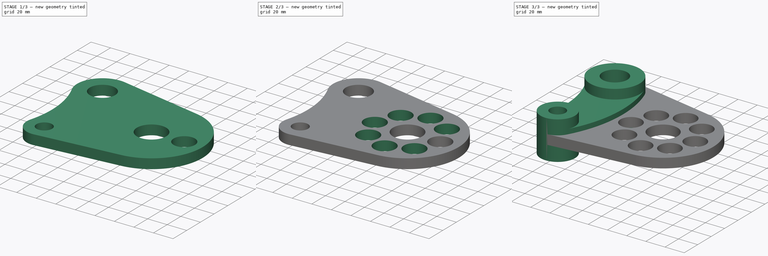
[diagram: build sequence overview — one tinted view per stage of 3, left to right]
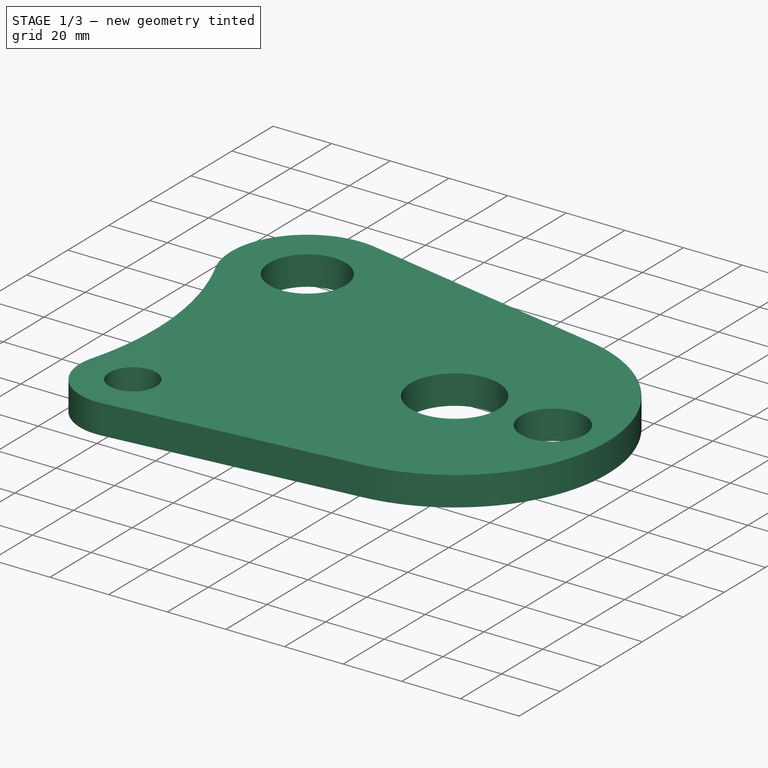
[diagram: stage 1 of 3 — iso view after this stage's code; geometry added in this stage tinted green]
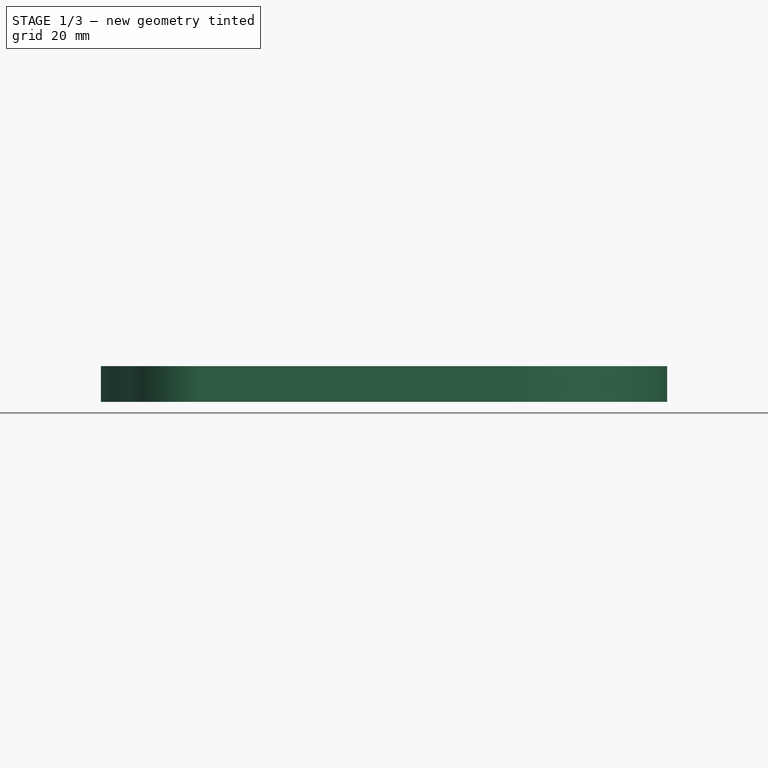
[diagram: stage 1 of 3 — front view after this stage's code; geometry added in this stage tinted green]
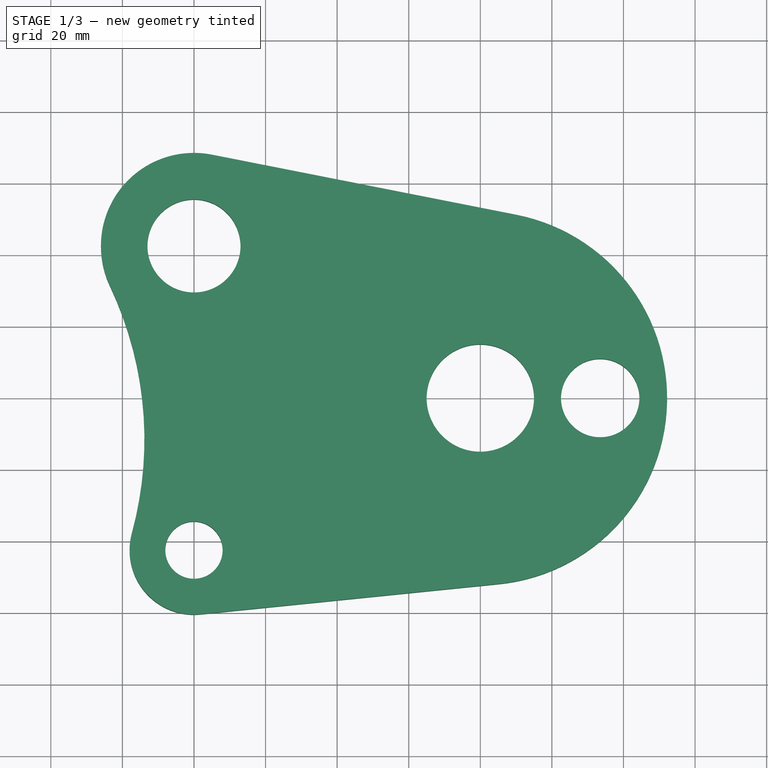
[diagram: stage 1 of 3 — top view after this stage's code; geometry added in this stage tinted green]
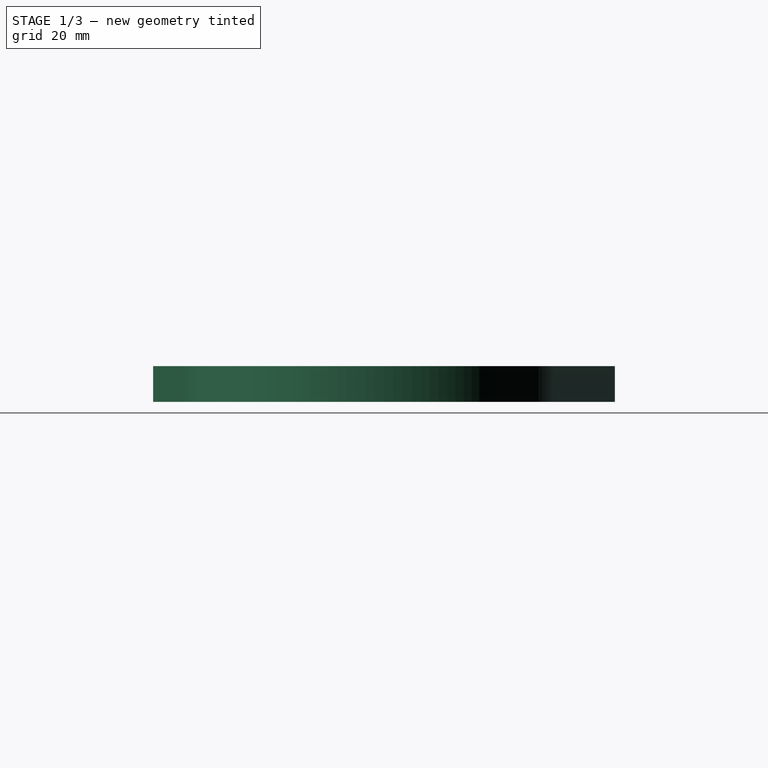
[diagram: stage 1 of 3 — right view after this stage's code; geometry added in this stage tinted green]
FCSTD DOCUMENT  (FreeCAD 0.18R14796 (Git))
Label: Exercise 2D -7
License: All rights reserved
LicenseURL: http://en.wikipedia.org/wiki/All_rights_reserved
objects: Sketcher::SketchObject×4, PartDesign::Pad×3, PartDesign::Pocket×1, PartDesign::PolarPattern×1, PartDesign::Body×1
note: 14 computed .brp shape members not serialized (recipe doc carries the construction recipe); baked Part::Feature solids carry a one-line shape summary decoded from their .brp

FEATURE [Sketcher::SketchObject] Sketch
  MapMode = 5
  Support = -> [XY_Plane]
  sketch-geometry (15):
    g0: Circle CenterX=0 CenterY=0 CenterZ=0 NormalX=0 NormalY=0 NormalZ=1 AngleXU=0 Radius=15
    g1: ArcOfCircle CenterX=0 CenterY=0 CenterZ=0 NormalX=0 NormalY=0 NormalZ=1 AngleXU=0 Radius=52.2 StartAngle=4.81359 EndAngle=7.65906
    g2: Circle CenterX=-80 CenterY=-42.5 CenterZ=0 NormalX=0 NormalY=0 NormalZ=1 AngleXU=0 Radius=8
    g3: Circle CenterX=-80 CenterY=42.5 CenterZ=0 NormalX=0 NormalY=0 NormalZ=1 AngleXU=0 Radius=13
    g4: LineSegment [constr] StartX=-80 StartY=42.5 StartZ=0 EndX=-80 EndY=-42.5 EndZ=0
    g5: GeomPoint X=-80 Y=0 Z=0
    g6: ArcOfCircle CenterX=-80 CenterY=42.5 CenterZ=0 NormalX=0 NormalY=0 NormalZ=1 AngleXU=0 Radius=26 StartAngle=1.37587 EndAngle=3.58435
    g7: ArcOfCircle CenterX=-80 CenterY=-42.5 CenterZ=0 NormalX=0 NormalY=0 NormalZ=1 AngleXU=0 Radius=18 StartAngle=2.87561 EndAngle=4.81359
    g8: LineSegment StartX=-78.1814 StartY=-60.4079 StartZ=0 EndX=5.27385 EndY=-51.9329 EndZ=0
    g9: LineSegment StartX=10.1106 StartY=51.2115 StartZ=0 EndX=-74.9641 EndY=68.0076 EndZ=0
    g10: ArcOfCircle CenterX=-193.85 CenterY=-11.4824 CenterZ=0 NormalX=0 NormalY=0 NormalZ=1 AngleXU=0 Radius=100 StartAngle=6.0172 EndAngle=6.72594
    g11: ArcOfCircle [constr] CenterX=-80 CenterY=42.5 CenterZ=0 NormalX=0 NormalY=0 NormalZ=1 AngleXU=0 Radius=26 StartAngle=3.58435 EndAngle=7.65906
    g12: ArcOfCircle [constr] CenterX=-80 CenterY=-42.5 CenterZ=0 NormalX=0 NormalY=0 NormalZ=1 AngleXU=0 Radius=18 StartAngle=4.81359 EndAngle=9.15879
    g13: ArcOfCircle [constr] CenterX=-173.406 CenterY=9.69412 CenterZ=0 NormalX=0 NormalY=0 NormalZ=1 AngleXU=0 Radius=125 StartAngle=5.77362 EndAngle=6.62094
    g14: Circle [constr] CenterX=33.5 CenterY=0 CenterZ=0 NormalX=0 NormalY=0 NormalZ=1 AngleXU=0 Radius=10.95
  constraints (36):
    c: Coincident(g0,g-1)
    c: Radius(g1) = 52.2
    c: Radius(g2) = 8
    c: Coincident(g1,g0)
    c: DistanceX(g2,g0) = 80
    c: DistanceY(g2,g3) = 85
    c: Coincident(g4,g2)
    c: Vertical(g4)
    c: Coincident(g3,g4)
    c: PointOnObject(g5,g-1)
    c: Symmetric(g2,g3,g5)
    c: Diameter(g3) = 26
    c: Coincident(g6,g3)
    c: Coincident(g7,g2)
    c: Diameter(g6) = 52
    c: Radius(g7) = 18
    c: Tangent(g6,g9) = -1.5708
    c: Tangent(g1,g9) = -1.5708
    c: Tangent(g1,g8) = -1.5708
    c: Tangent(g7,g8) = -1.5708
    c: Tangent(g6,g10) = 1.5708
    c: Tangent(g7,g10) = 1.5708
    c: Coincident(g11,g3)
    c: Coincident(g12,g2)
    c: Tangent(g7,g12) = -1.5708
    c: Coincident(g12,g7)
    c: Radius(g10) = 100
    c: Tangent(g13,g12) = -1.5708
    c: Tangent(g13,g11) = -1.5708
    c: Radius(g13) = 125
    c: Tangent(g11,g6) = -1.5708
    c: Tangent(g11,g6) = -1.5708
    c: PointOnObject(g14,g-1)
    c: Diameter(g14) = 21.9
    c: DistanceX(g0,g14) = 33.5
    c: Diameter(g0) = 30
FEATURE [PartDesign::Pad] Pad
  Length = 10
  Length2 = 100
  Midplane = true
  Profile = -> Sketch
  Refine = true
  Type = 0
FEATURE [Sketcher::SketchObject] Sketch001
  MapMode = 5
  Support = -> [XY_Plane]
  expr: Constraints[1] = Sketch.Constraints[1]
  expr: Constraints[2] = Sketch.Constraints[2]
  expr: Constraints[4] = Sketch.Constraints[4]
  expr: Constraints[5] = Sketch.Constraints[5]
  expr: Constraints[9] = Sketch.Constraints[11]
  expr: Constraints[13] = Sketch.Constraints[15]
  expr: Constraints[27] = Sketch.Constraints[29]
  expr: Constraints[32] = Sketch.Constraints[34]
  expr: Constraints[33] = Sketch.Constraints[35]
  expr: Constraints[31] = Sketch.Constraints[33]
  expr: Constraints[24] = Sketch.Constraints[26]
  expr: Constraints[12] = Sketch.Constraints[14]
  sketch-geometry (15):
    g0: Circle [constr] CenterX=0 CenterY=0 CenterZ=0 NormalX=0 NormalY=0 NormalZ=1 AngleXU=0 Radius=15
    g1: ArcOfCircle [constr] CenterX=0 CenterY=0 CenterZ=0 NormalX=0 NormalY=0 NormalZ=1 AngleXU=0 Radius=52.2 StartAngle=4.81359 EndAngle=7.65906
    g2: Circle [constr] CenterX=-80 CenterY=-42.5 CenterZ=0 NormalX=0 NormalY=0 NormalZ=1 AngleXU=0 Radius=8
    g3: Circle [constr] CenterX=-80 CenterY=42.5 CenterZ=0 NormalX=0 NormalY=0 NormalZ=1 AngleXU=0 Radius=13
    g4: LineSegment [constr] StartX=-80 StartY=42.5 StartZ=0 EndX=-80 EndY=-42.5 EndZ=0
    g5: GeomPoint [constr] X=-80 Y=0 Z=0
    g6: ArcOfCircle [constr] CenterX=-80 CenterY=42.5 CenterZ=0 NormalX=0 NormalY=0 NormalZ=1 AngleXU=0 Radius=26 StartAngle=1.37587 EndAngle=3.58435
    g7: ArcOfCircle [constr] CenterX=-80 CenterY=-42.5 CenterZ=0 NormalX=0 NormalY=0 NormalZ=1 AngleXU=0 Radius=18 StartAngle=2.87561 EndAngle=4.81359
    g8: LineSegment [constr] StartX=-78.1814 StartY=-60.4079 StartZ=0 EndX=5.27385 EndY=-51.9329 EndZ=0
    g9: LineSegment [constr] StartX=10.1106 StartY=51.2115 StartZ=0 EndX=-74.9641 EndY=68.0076 EndZ=0
    g10: ArcOfCircle [constr] CenterX=-193.85 CenterY=-11.4824 CenterZ=0 NormalX=0 NormalY=0 NormalZ=1 AngleXU=0 Radius=100 StartAngle=6.0172 EndAngle=6.72594
    g11: ArcOfCircle [constr] CenterX=-80 CenterY=42.5 CenterZ=0 NormalX=0 NormalY=0 NormalZ=1 AngleXU=0 Radius=26 StartAngle=3.58435 EndAngle=7.65906
    g12: ArcOfCircle [constr] CenterX=-80 CenterY=-42.5 CenterZ=0 NormalX=0 NormalY=0 NormalZ=1 AngleXU=0 Radius=18 StartAngle=4.81359 EndAngle=9.15879
    g13: ArcOfCircle [constr] CenterX=-173.406 CenterY=9.69412 CenterZ=0 NormalX=0 NormalY=0 NormalZ=1 AngleXU=0 Radius=125 StartAngle=5.77362 EndAngle=6.62094
    g14: Circle CenterX=33.5 CenterY=0 CenterZ=0 NormalX=0 NormalY=0 NormalZ=1 AngleXU=0 Radius=10.95
  constraints (34):
    c: Coincident(g0,g-1)
    c: Radius(g1) = 52.2
    c: Radius(g2) = 8
    c: Coincident(g1,g0)
    c: DistanceX(g2,g0) = 80
    c: DistanceY(g2,g3) = 85
    c: Coincident(g4,g2)
    c: Coincident(g3,g4)
    c: Symmetric(g2,g3,g5)
    c: Diameter(g3) = 26
    c: Coincident(g6,g3)
    c: Coincident(g7,g2)
    c: Diameter(g6) = 52
    c: Radius(g7) = 18
    c: Tangent(g6,g9) = -1.5708
    c: Tangent(g1,g9) = -1.5708
    c: Tangent(g1,g8) = -1.5708
    c: Tangent(g7,g8) = -1.5708
    c: Tangent(g6,g10) = 1.5708
    c: Tangent(g7,g10) = 1.5708
    c: Coincident(g11,g3)
    c: Coincident(g12,g2)
    c: Tangent(g7,g12) = -1.5708
    c: Coincident(g12,g7)
    c: Radius(g10) = 100
    c: Tangent(g13,g12) = -1.5708
    c: Tangent(g13,g11) = -1.5708
    c: Radius(g13) = 125
    c: Tangent(g11,g6) = -1.5708
    c: Tangent(g11,g6) = -1.5708
    c: PointOnObject(g14,g-1)
    c: Diameter(g14) = 21.9
    c: DistanceX(g0,g14) = 33.5
    c: Diameter(g0) = 30
FEATURE [PartDesign::Pocket] Pocket
  BaseFeature = -> Pad
  Length = 5
  Length2 = 100
  Midplane = true
  Profile = -> Sketch001
  Refine = true
  Type = 1
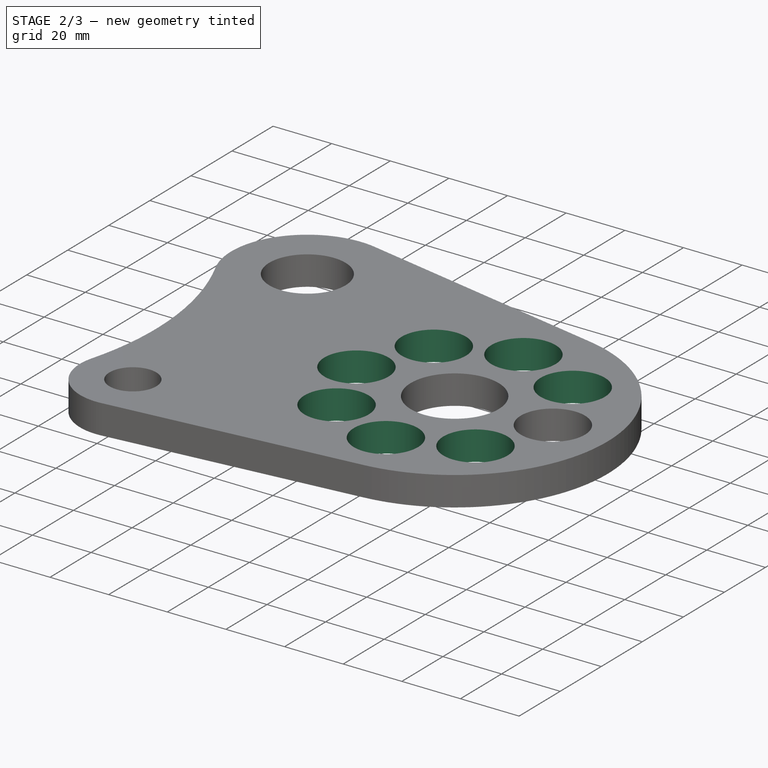
[diagram: stage 2 of 3 — iso view after this stage's code; geometry added in this stage tinted green]
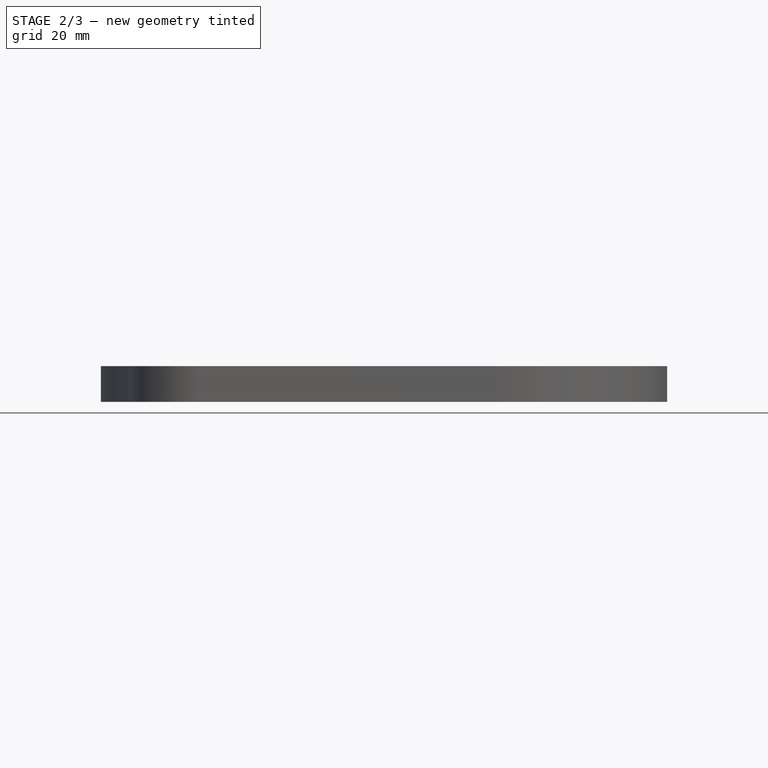
[diagram: stage 2 of 3 — front view after this stage's code; geometry added in this stage tinted green]
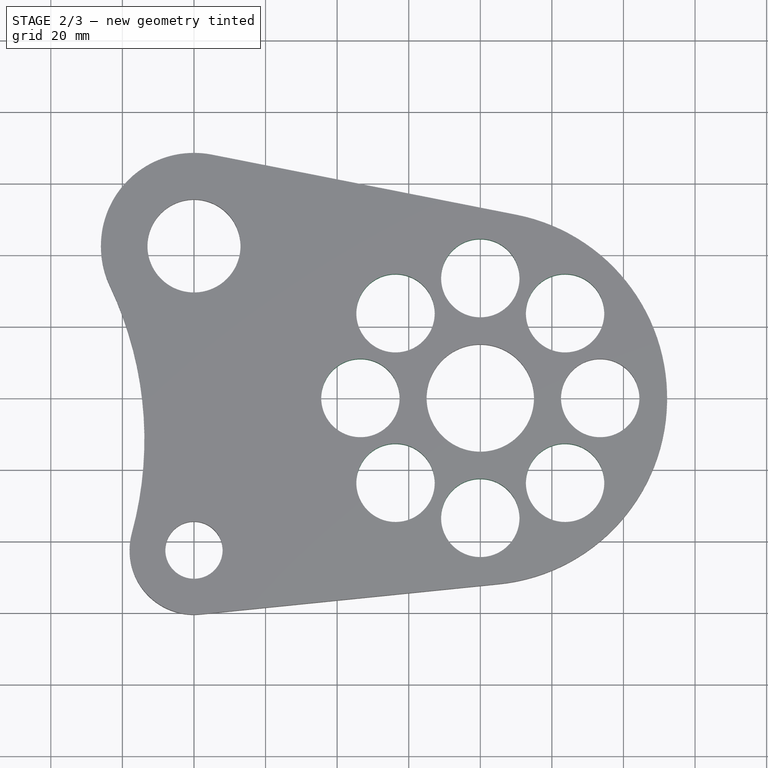
[diagram: stage 2 of 3 — top view after this stage's code; geometry added in this stage tinted green]
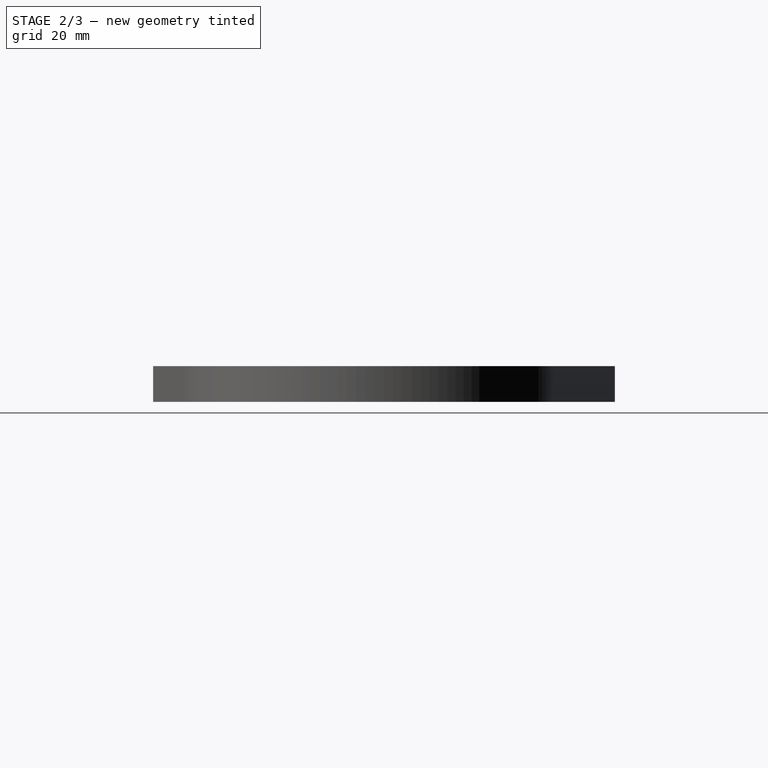
[diagram: stage 2 of 3 — right view after this stage's code; geometry added in this stage tinted green]
FEATURE [PartDesign::PolarPattern] PolarPattern
  Angle = 360
  Axis = -> Sketch001 [N_Axis]
  BaseFeature = -> Pocket
  Occurrences = 8
  Originals = -> [Pocket]
  Refine = true
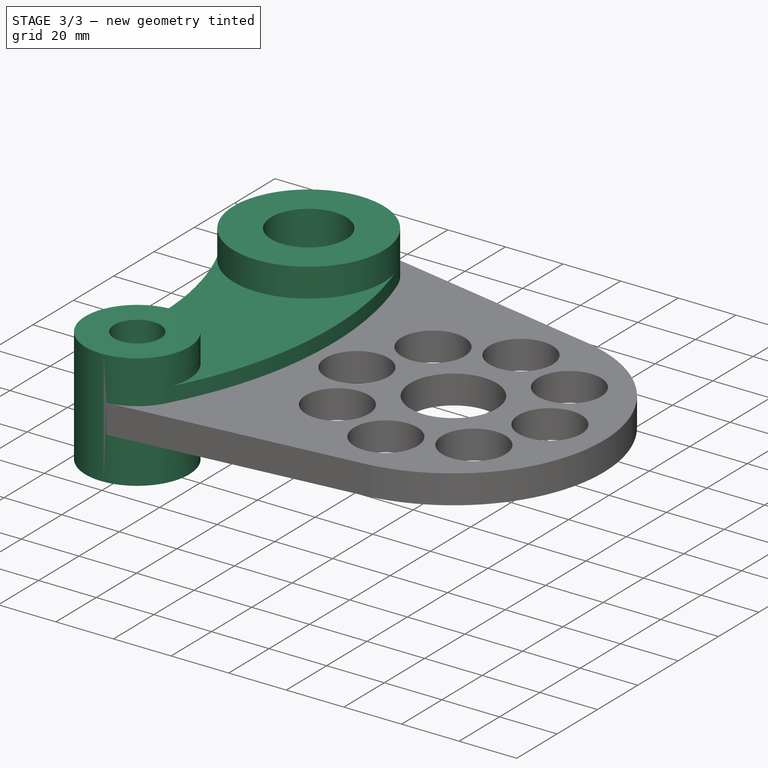
[diagram: stage 3 of 3 — iso view after this stage's code; geometry added in this stage tinted green]
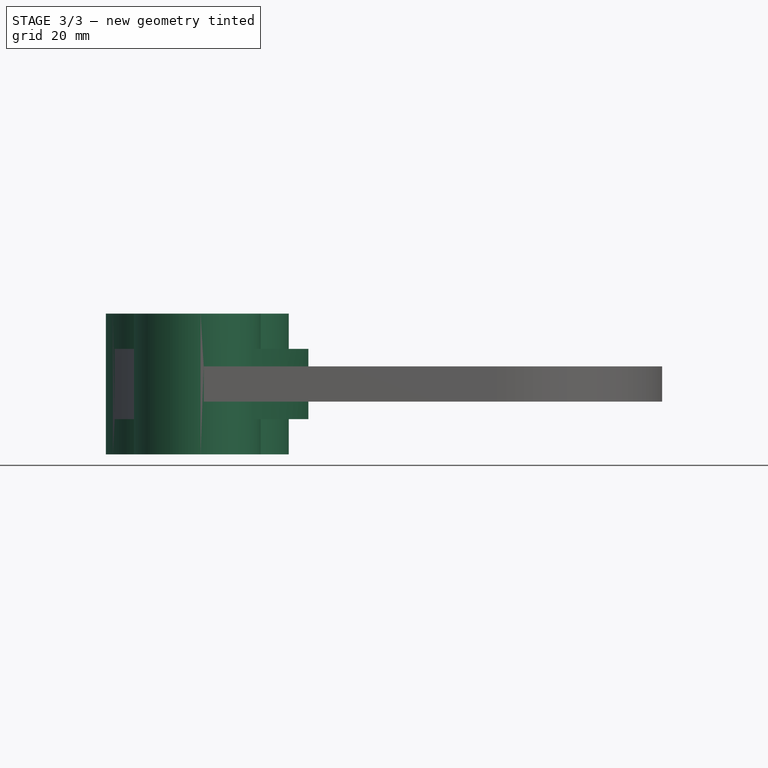
[diagram: stage 3 of 3 — front view after this stage's code; geometry added in this stage tinted green]
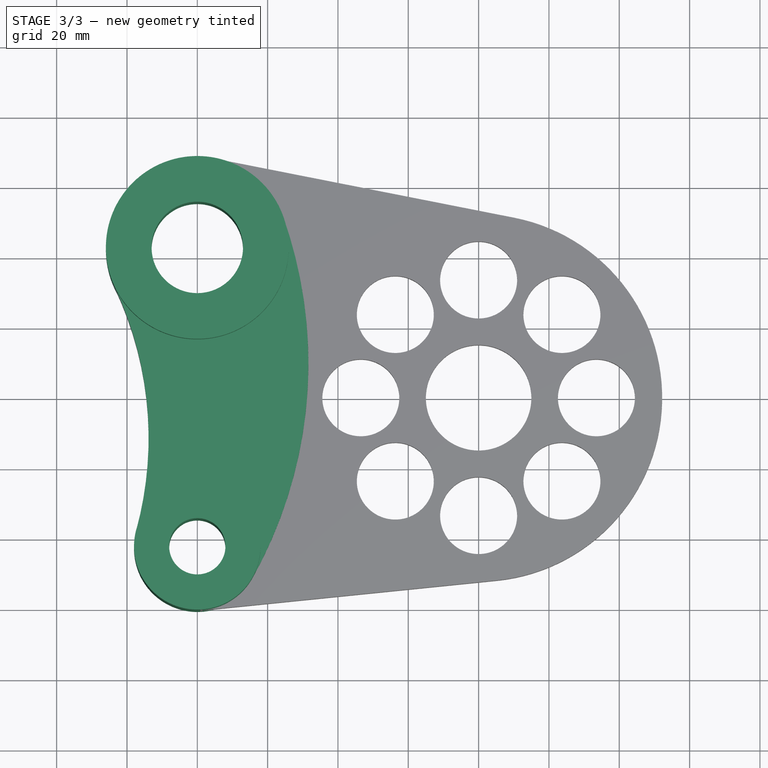
[diagram: stage 3 of 3 — top view after this stage's code; geometry added in this stage tinted green]
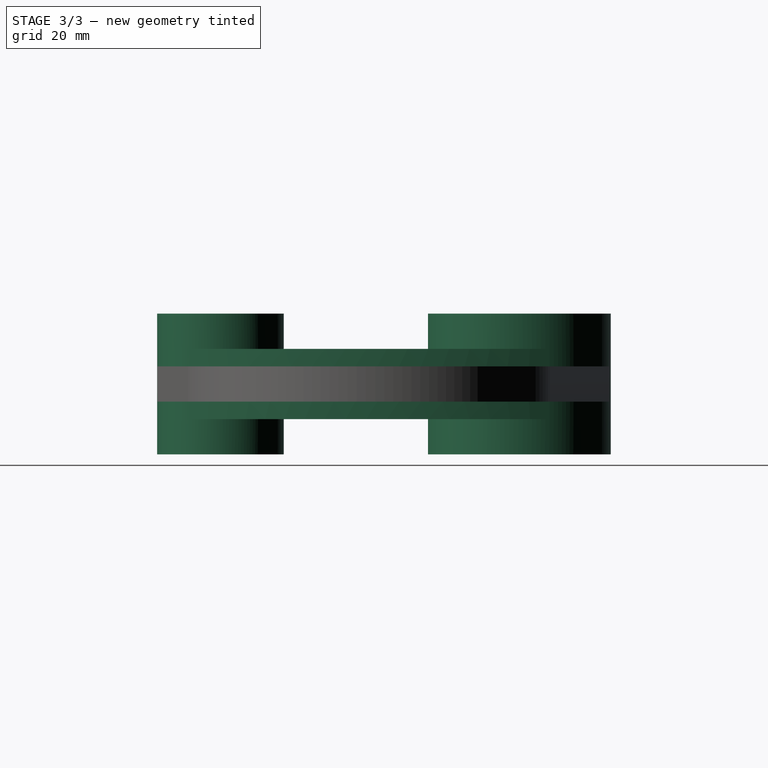
[diagram: stage 3 of 3 — right view after this stage's code; geometry added in this stage tinted green]
FEATURE [Sketcher::SketchObject] Sketch002
  MapMode = 5
  Support = -> [XY_Plane]
  expr: Constraints[1] = Sketch.Constraints[1]
  expr: Constraints[2] = Sketch.Constraints[2]
  expr: Constraints[4] = Sketch.Constraints[4]
  expr: Constraints[5] = Sketch.Constraints[5]
  expr: Constraints[9] = Sketch.Constraints[11]
  expr: Constraints[13] = Sketch.Constraints[15]
  expr: Constraints[27] = Sketch.Constraints[29]
  expr: Constraints[32] = Sketch.Constraints[34]
  expr: Constraints[33] = Sketch.Constraints[35]
  expr: Constraints[31] = Sketch.Constraints[33]
  expr: Constraints[24] = Sketch.Constraints[26]
  expr: Constraints[12] = Sketch.Constraints[14]
  sketch-geometry (17):
    g0: Circle [constr] CenterX=0 CenterY=0 CenterZ=0 NormalX=0 NormalY=0 NormalZ=1 AngleXU=0 Radius=15
    g1: ArcOfCircle [constr] CenterX=0 CenterY=0 CenterZ=0 NormalX=0 NormalY=0 NormalZ=1 AngleXU=0 Radius=52.2 StartAngle=4.81359 EndAngle=7.65906
    g2: Circle CenterX=-80 CenterY=-42.5 CenterZ=0 NormalX=0 NormalY=0 NormalZ=1 AngleXU=0 Radius=8
    g3: Circle CenterX=-80 CenterY=42.5 CenterZ=0 NormalX=0 NormalY=0 NormalZ=1 AngleXU=0 Radius=13
    g4: LineSegment [constr] StartX=-80 StartY=42.5 StartZ=0 EndX=-80 EndY=-42.5 EndZ=0
    g5: GeomPoint [constr] X=-80 Y=0 Z=0
    g6: ArcOfCircle CenterX=-80 CenterY=42.5 CenterZ=0 NormalX=0 NormalY=0 NormalZ=1 AngleXU=0 Radius=26 StartAngle=1.37587 EndAngle=3.58435
    g7: ArcOfCircle CenterX=-80 CenterY=-42.5 CenterZ=0 NormalX=0 NormalY=0 NormalZ=1 AngleXU=0 Radius=18 StartAngle=2.87561 EndAngle=4.81359
    g8: LineSegment [constr] StartX=-78.1814 StartY=-60.4079 StartZ=0 EndX=5.27385 EndY=-51.9329 EndZ=0
    g9: LineSegment [constr] StartX=10.1106 StartY=51.2115 StartZ=0 EndX=-74.9641 EndY=68.0076 EndZ=0
    g10: ArcOfCircle CenterX=-193.85 CenterY=-11.4824 CenterZ=0 NormalX=0 NormalY=0 NormalZ=1 AngleXU=0 Radius=100 StartAngle=6.0172 EndAngle=6.72594
    g11: ArcOfCircle [constr] CenterX=-80 CenterY=42.5 CenterZ=0 NormalX=0 NormalY=0 NormalZ=1 AngleXU=0 Radius=26 StartAngle=3.58435 EndAngle=7.65906
    g12: ArcOfCircle [constr] CenterX=-80 CenterY=-42.5 CenterZ=0 NormalX=0 NormalY=0 NormalZ=1 AngleXU=0 Radius=18 StartAngle=4.81359 EndAngle=9.15879
    g13: ArcOfCircle CenterX=-173.406 CenterY=9.69412 CenterZ=0 NormalX=0 NormalY=0 NormalZ=1 AngleXU=0 Radius=125 StartAngle=5.77362 EndAngle=6.62094
    g14: Circle [constr] CenterX=33.5 CenterY=0 CenterZ=0 NormalX=0 NormalY=0 NormalZ=1 AngleXU=0 Radius=10.95
    g15: ArcOfCircle CenterX=-80 CenterY=42.5 CenterZ=0 NormalX=0 NormalY=0 NormalZ=1 AngleXU=0 Radius=26 StartAngle=0.337758 EndAngle=1.37587
    g16: ArcOfCircle CenterX=-80 CenterY=-42.5 CenterZ=0 NormalX=0 NormalY=0 NormalZ=1 AngleXU=0 Radius=18 StartAngle=4.81359 EndAngle=5.77362
  constraints (40):
    c: Coincident(g0,g-1)
    c: Radius(g1) = 52.2
    c: Radius(g2) = 8
    c: Coincident(g1,g0)
    c: DistanceX(g2,g0) = 80
    c: DistanceY(g2,g3) = 85
    c: Coincident(g4,g2)
    c: Coincident(g3,g4)
    c: Symmetric(g2,g3,g5)
    c: Diameter(g3) = 26
    c: Coincident(g6,g3)
    c: Coincident(g7,g2)
    c: Diameter(g6) = 52
    c: Radius(g7) = 18
    c: Tangent(g6,g9) = -1.5708
    c: Tangent(g1,g9) = -1.5708
    c: Tangent(g1,g8) = -1.5708
    c: Tangent(g7,g8) = -1.5708
    c: Tangent(g6,g10) = 1.5708
    c: Tangent(g7,g10) = 1.5708
    c: Coincident(g11,g3)
    c: Coincident(g12,g2)
    c: Tangent(g7,g12) = -1.5708
    c: Coincident(g12,g7)
    c: Radius(g10) = 100
    c: Tangent(g13,g12) = -1.5708
    c: Tangent(g13,g11) = -1.5708
    c: Radius(g13) = 125
    c: Tangent(g11,g6) = -1.5708
    c: Tangent(g11,g6) = -1.5708
    c: PointOnObject(g14,g-1)
    c: Diameter(g14) = 21.9
    c: DistanceX(g0,g14) = 33.5
    c: Diameter(g0) = 30
    c: Coincident(g15,g6)
    c: Coincident(g15,g13)
    c: Coincident(g15,g6)
    c: Coincident(g16,g7)
    c: Coincident(g16,g7)
    c: Coincident(g16,g13)
FEATURE [PartDesign::Pad] Pad001
  BaseFeature = -> PolarPattern
  Length = 20
  Length2 = 100
  Midplane = true
  Profile = -> Sketch002
  Refine = true
  Type = 0
FEATURE [Sketcher::SketchObject] Sketch003
  MapMode = 5
  Support = -> [XY_Plane]
  expr: Constraints[1] = Sketch.Constraints[1]
  expr: Constraints[2] = Sketch.Constraints[2]
  expr: Constraints[4] = Sketch.Constraints[4]
  expr: Constraints[5] = Sketch.Constraints[5]
  expr: Constraints[9] = Sketch.Constraints[11]
  expr: Constraints[13] = Sketch.Constraints[15]
  expr: Constraints[27] = Sketch.Constraints[29]
  expr: Constraints[32] = Sketch.Constraints[34]
  expr: Constraints[33] = Sketch.Constraints[35]
  expr: Constraints[31] = Sketch.Constraints[33]
  expr: Constraints[24] = Sketch.Constraints[26]
  expr: Constraints[12] = Sketch.Constraints[14]
  sketch-geometry (15):
    g0: Circle [constr] CenterX=0 CenterY=0 CenterZ=0 NormalX=0 NormalY=0 NormalZ=1 AngleXU=0 Radius=15
    g1: ArcOfCircle [constr] CenterX=0 CenterY=0 CenterZ=0 NormalX=0 NormalY=0 NormalZ=1 AngleXU=0 Radius=52.2 StartAngle=4.81359 EndAngle=7.65906
    g2: Circle CenterX=-80 CenterY=-42.5 CenterZ=0 NormalX=0 NormalY=0 NormalZ=1 AngleXU=0 Radius=8
    g3: Circle CenterX=-80 CenterY=42.5 CenterZ=0 NormalX=0 NormalY=0 NormalZ=1 AngleXU=0 Radius=13
    g4: LineSegment [constr] StartX=-80 StartY=42.5 StartZ=0 EndX=-80 EndY=-42.5 EndZ=0
    g5: GeomPoint [constr] X=-80 Y=0 Z=0
    g6: ArcOfCircle CenterX=-80 CenterY=42.5 CenterZ=0 NormalX=0 NormalY=0 NormalZ=1 AngleXU=0 Radius=26 StartAngle=1.37587 EndAngle=3.58435
    g7: ArcOfCircle CenterX=-80 CenterY=-42.5 CenterZ=0 NormalX=0 NormalY=0 NormalZ=1 AngleXU=0 Radius=18 StartAngle=2.87561 EndAngle=4.81359
    g8: LineSegment [constr] StartX=-78.1814 StartY=-60.4079 StartZ=0 EndX=5.27385 EndY=-51.9329 EndZ=0
    g9: LineSegment [constr] StartX=10.1106 StartY=51.2115 StartZ=0 EndX=-74.9641 EndY=68.0076 EndZ=0
    g10: ArcOfCircle [constr] CenterX=-193.85 CenterY=-11.4824 CenterZ=0 NormalX=0 NormalY=0 NormalZ=1 AngleXU=0 Radius=100 StartAngle=6.0172 EndAngle=6.72594
    g11: ArcOfCircle CenterX=-80 CenterY=42.5 CenterZ=0 NormalX=0 NormalY=0 NormalZ=1 AngleXU=0 Radius=26 StartAngle=3.58435 EndAngle=7.65906
    g12: ArcOfCircle CenterX=-80 CenterY=-42.5 CenterZ=0 NormalX=0 NormalY=0 NormalZ=1 AngleXU=0 Radius=18 StartAngle=4.81359 EndAngle=9.15879
    g13: ArcOfCircle [constr] CenterX=-173.406 CenterY=9.69412 CenterZ=0 NormalX=0 NormalY=0 NormalZ=1 AngleXU=0 Radius=125 StartAngle=5.77362 EndAngle=6.62094
    g14: Circle [constr] CenterX=33.5 CenterY=0 CenterZ=0 NormalX=0 NormalY=0 NormalZ=1 AngleXU=0 Radius=10.95
  constraints (34):
    c: Coincident(g0,g-1)
    c: Radius(g1) = 52.2
    c: Radius(g2) = 8
    c: Coincident(g1,g0)
    c: DistanceX(g2,g0) = 80
    c: DistanceY(g2,g3) = 85
    c: Coincident(g4,g2)
    c: Coincident(g3,g4)
    c: Symmetric(g2,g3,g5)
    c: Diameter(g3) = 26
    c: Coincident(g6,g3)
    c: Coincident(g7,g2)
    c: Diameter(g6) = 52
    c: Radius(g7) = 18
    c: Tangent(g6,g9) = -1.5708
    c: Tangent(g1,g9) = -1.5708
    c: Tangent(g1,g8) = -1.5708
    c: Tangent(g7,g8) = -1.5708
    c: Tangent(g6,g10) = 1.5708
    c: Tangent(g7,g10) = 1.5708
    c: Coincident(g11,g3)
    c: Coincident(g12,g2)
    c: Tangent(g7,g12) = -1.5708
    c: Coincident(g12,g7)
    c: Radius(g10) = 100
    c: Tangent(g13,g12) = -1.5708
    c: Tangent(g13,g11) = -1.5708
    c: Radius(g13) = 125
    c: Tangent(g11,g6) = -1.5708
    c: Tangent(g11,g6) = -1.5708
    c: PointOnObject(g14,g-1)
    c: Diameter(g14) = 21.9
    c: DistanceX(g0,g14) = 33.5
    c: Diameter(g0) = 30
FEATURE [PartDesign::Pad] Pad002
  BaseFeature = -> Pad001
  Length = 40
  Length2 = 100
  Midplane = true
  Profile = -> Sketch003
  Refine = true
  Type = 0
FEATURE [PartDesign::Body] Body
  Group = -> [Sketch,Pad,Sketch001,Pocket,PolarPattern,Sketch002,Pad001,Sketch003,Pad002]
  Origin = -> Origin
  Tip = -> Pad002
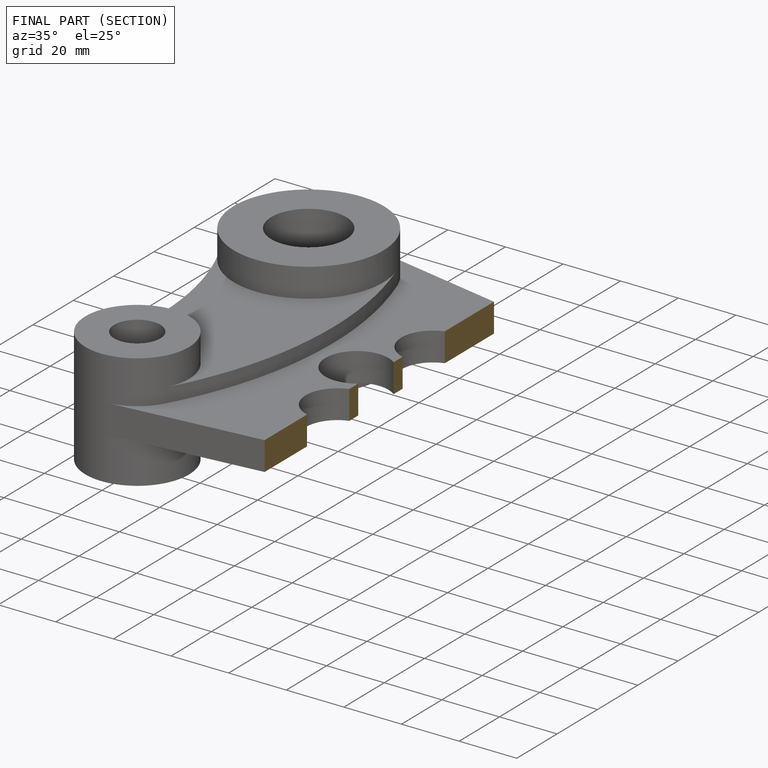
[diagram: finished part — half-section view (interior)]
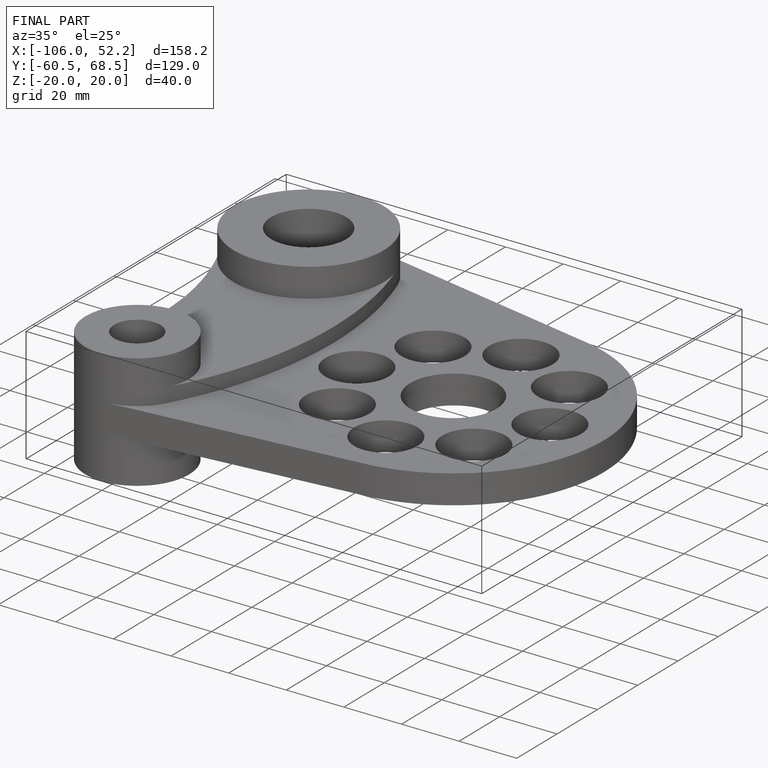
[diagram: finished part — iso view with bounding-box wireframe]
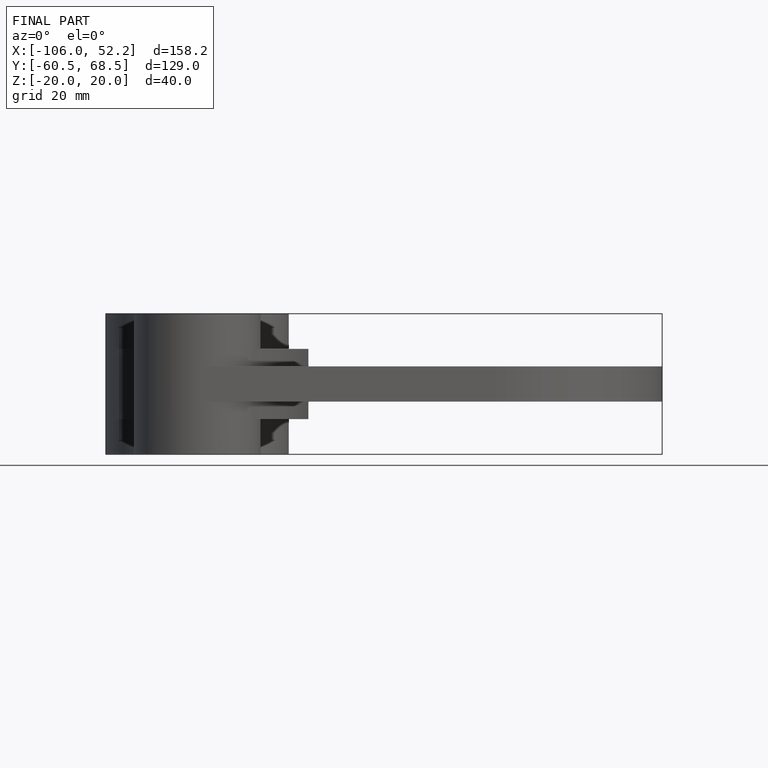
[diagram: finished part — front view with bounding-box wireframe]
